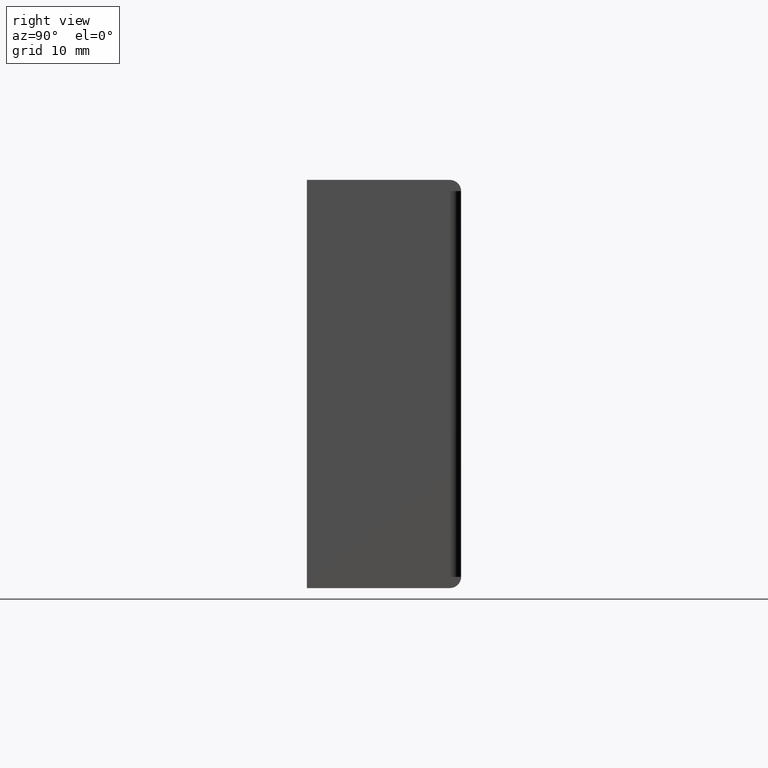
[diagram: clean part render]
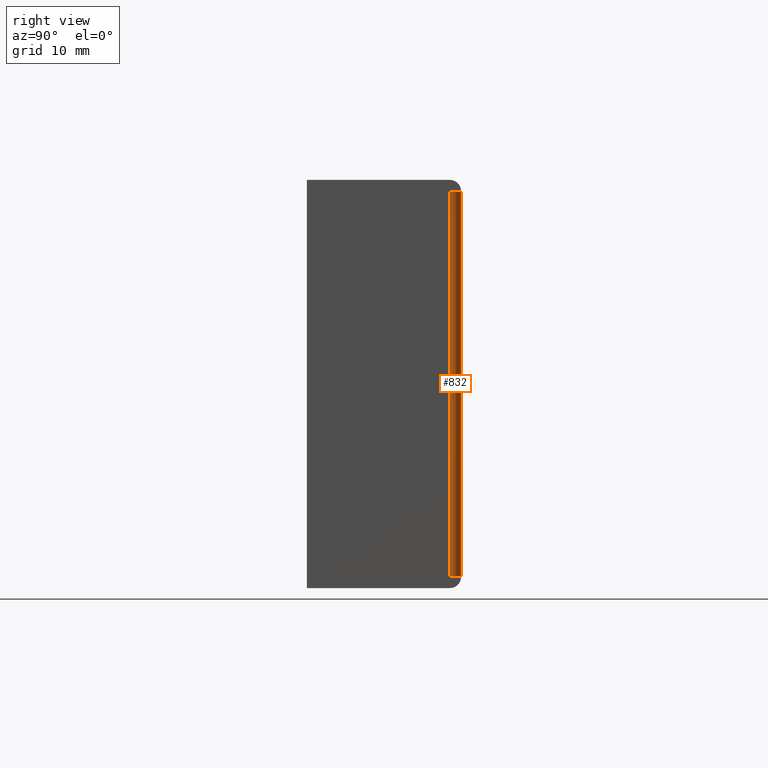
[diagram: same view with one face highlighted and labeled with its STEP entity id]
A machine part, right view. The second image highlights one B-rep face of the part: STEP entity #832.
In plain terms, the highlighted face is a freeform B-spline surface patch.
Its self-contained STEP definition (entity closure, byte-faithful):
#772=CARTESIAN_POINT('',(41.848477154530968,56.698256980215461,59.875000000000007));
#773=CARTESIAN_POINT('',(41.848477154530968,56.698256980215461,2.090625000000003));
#774=CARTESIAN_POINT('',(41.926695187116508,58.489744460214261,59.875000000000007));
#775=CARTESIAN_POINT('',(41.926695187116508,58.489744460214261,2.090625000000003));
#776=CARTESIAN_POINT('',(40.137907019908781,58.364116658865996,59.875000000000000));
#777=CARTESIAN_POINT('',(40.137907019908781,58.364116658865996,2.090625000000003));
#785=(BOUNDED_SURFACE()B_SPLINE_SURFACE(1,2,((#772,#774,#776),(#773,#775,#777)),.UNSPECIFIED.,.F.,.F.,.U.)B_SPLINE_SURFACE_WITH_KNOTS((2,2),(3,3),(0.0,57.784374999999997),(0.0,2.866788103266180),.UNSPECIFIED.)GEOMETRIC_REPRESENTATION_ITEM()RATIONAL_B_SPLINE_SURFACE(((1.0,0.664513893920860,0.996233570383978),(1.0,0.664513893920860,0.996233570383978)))REPRESENTATION_ITEM('')SURFACE());
#786=CARTESIAN_POINT('',(41.850000000000001,56.768048000000000,58.500000000000000));
#787=VERTEX_POINT('',#786);
#788=CARTESIAN_POINT('',(40.250000000000000,58.368048000000002,58.500000000000000));
#789=VERTEX_POINT('',#788);
#790=CARTESIAN_POINT('',(41.850000000000001,56.768048000000000,58.500000000000000));
#791=CARTESIAN_POINT('',(41.850000000000009,58.368047999999995,58.499999999999993));
#792=CARTESIAN_POINT('',(40.250000000000000,58.368048000000002,58.500000000000000));
#800=(BOUNDED_CURVE()B_SPLINE_CURVE(2,(#790,#791,#792),.UNSPECIFIED.,.F.,.U.)CURVE()GEOMETRIC_REPRESENTATION_ITEM()QUASI_UNIFORM_CURVE()RATIONAL_B_SPLINE_CURVE((1.0,0.707106781186548,1.0))REPRESENTATION_ITEM(''));
#801=EDGE_CURVE('',#787,#789,#800,.T.);
#802=ORIENTED_EDGE('',*,*,#801,.F.);
#803=CARTESIAN_POINT('',(41.850000000000001,56.768048000000000,3.500000000000000));
#804=VERTEX_POINT('',#803);
#805=CARTESIAN_POINT('',(41.850000000000001,56.768048000000000,3.500000000000000));
#806=CARTESIAN_POINT('',(41.850000000000001,56.768048000000000,58.500000000000000));
#807=QUASI_UNIFORM_CURVE('',1,(#805,#806),.UNSPECIFIED.,.F.,.U.);
#808=EDGE_CURVE('',#804,#787,#807,.T.);
#809=ORIENTED_EDGE('',*,*,#808,.F.);
#810=CARTESIAN_POINT('',(40.250000000000000,58.368048000000002,3.500000000000000));
#811=VERTEX_POINT('',#810);
#812=CARTESIAN_POINT('',(40.250000000000000,58.368048000000002,3.500000000000000));
#813=CARTESIAN_POINT('',(41.850000000000009,58.368047999999995,3.499999999999999));
#814=CARTESIAN_POINT('',(41.850000000000001,56.768048000000000,3.500000000000000));
#822=(BOUNDED_CURVE()B_SPLINE_CURVE(2,(#812,#813,#814),.UNSPECIFIED.,.F.,.U.)CURVE()GEOMETRIC_REPRESENTATION_ITEM()QUASI_UNIFORM_CURVE()RATIONAL_B_SPLINE_CURVE((1.0,0.707106781186548,1.0))REPRESENTATION_ITEM(''));
#823=EDGE_CURVE('',#811,#804,#822,.T.);
#824=ORIENTED_EDGE('',*,*,#823,.F.);
#825=CARTESIAN_POINT('',(40.250000000000000,58.368048000000002,58.500000000000000));
#826=CARTESIAN_POINT('',(40.250000000000000,58.368048000000002,3.500000000000000));
#827=QUASI_UNIFORM_CURVE('',1,(#825,#826),.UNSPECIFIED.,.F.,.U.);
#828=EDGE_CURVE('',#789,#811,#827,.T.);
#829=ORIENTED_EDGE('',*,*,#828,.F.);
#830=EDGE_LOOP('',(#802,#809,#824,#829));
#831=FACE_OUTER_BOUND('',#830,.T.);
#832=ADVANCED_FACE('',(#831),#785,.T.);